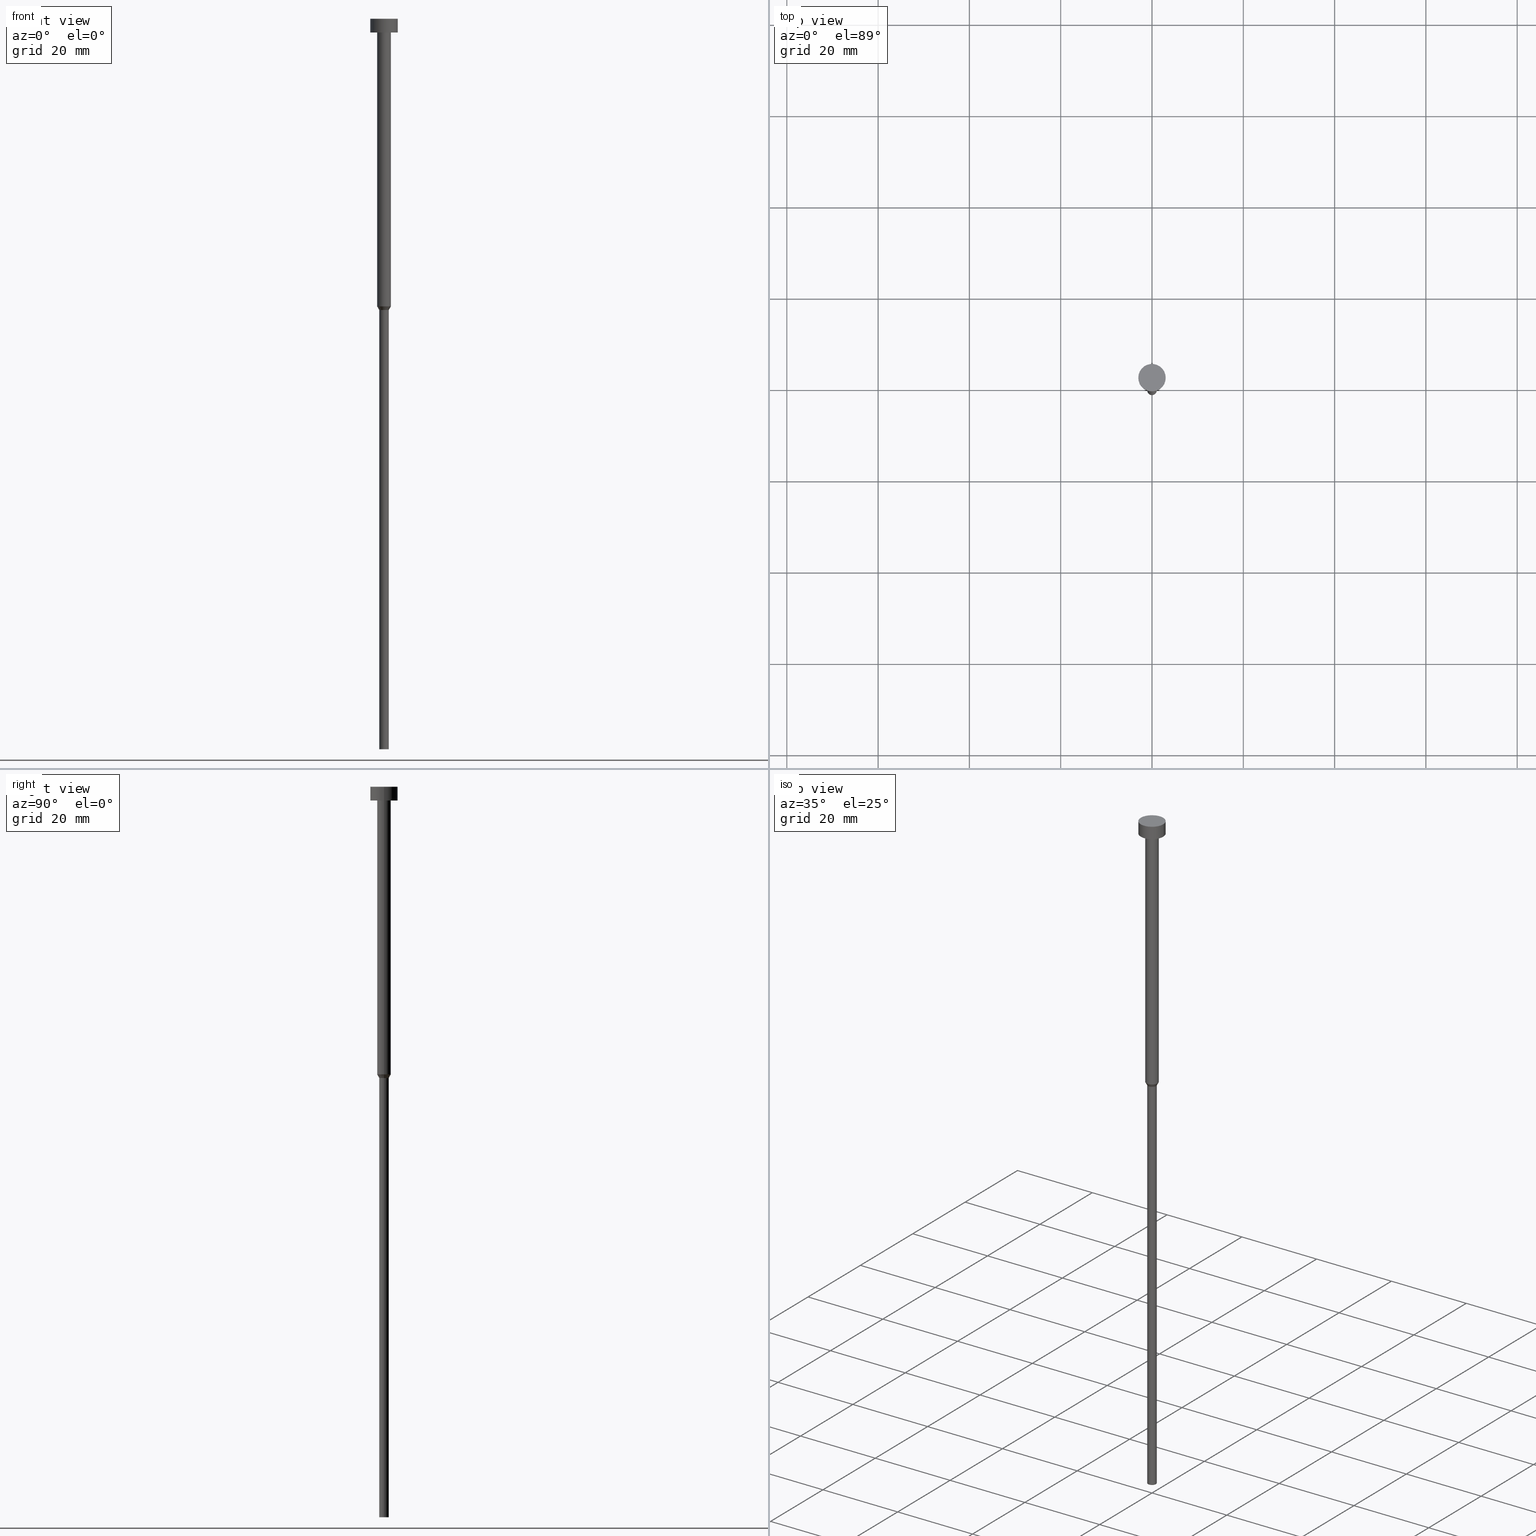
[diagram: canonical four-view strip — front | top / right | iso, engineering-drawing reading convention]
A machine part, canonical four-view strip (front | top / right | iso — engineering-drawing reading convention). The complete STEP part file that produces these views, byte-faithful:
ISO-10303-21;
HEADER;
FILE_DESCRIPTION (( 'STEP AP203' ),
    '1' );
FILE_NAME ('cc8b.STEP',
    '2023-02-13T10:01:12',
    ( '' ),
    ( '' ),
    'SwSTEP 2.0',
    'SolidWorks 2019',
    '' );
FILE_SCHEMA (( 'CONFIG_CONTROL_DESIGN' ));
ENDSEC;

DATA;
#1 = EDGE_LOOP ( 'NONE', ( #302, #23, #27, #100 ) ) ;
#2 = EDGE_CURVE ( 'NONE', #33, #271, #21, .T. ) ;
#3 = CYLINDRICAL_SURFACE ( 'NONE', #141, 3.000000000000000000 ) ;
#4 = CONICAL_SURFACE ( 'NONE', #309, 1.500000000000000000, 0.5235987755983028125 ) ;
#5 = CC_DESIGN_APPROVAL ( #342, ( #30 ) ) ;
#6 = DIRECTION ( 'NONE',  ( -0.000000000000000000, -0.000000000000000000, 1.000000000000000000 ) ) ;
#7 = EDGE_LOOP ( 'NONE', ( #91, #35 ) ) ;
#8 = CARTESIAN_POINT ( 'NONE',  ( 0.000000000000000000, 0.000000000000000000, 0.000000000000000000 ) ) ;
#9 = CARTESIAN_POINT ( 'NONE',  ( 0.000000000000000000, 0.000000000000000000, -3.673940397442059868E-16 ) ) ;
#10 = DIRECTION ( 'NONE',  ( 1.000000000000000000, 0.000000000000000000, 0.000000000000000000 ) ) ;
#11 = CC_DESIGN_PERSON_AND_ORGANIZATION_ASSIGNMENT ( #317, #74, ( #70 ) ) ;
#12 = CARTESIAN_POINT ( 'NONE',  ( 0.000000000000000000, 0.000000000000000000, -63.00000000000000000 ) ) ;
#13 = APPLICATION_CONTEXT ( 'configuration controlled 3d designs of mechanical parts and assemblies' ) ;
#14 = AXIS2_PLACEMENT_3D ( 'NONE', #322, #120, #340 ) ;
#15 = ORIENTED_EDGE ( 'NONE', *, *, #101, .F. ) ;
#16 = VERTEX_POINT ( 'NONE', #134 ) ;
#17 = AXIS2_PLACEMENT_3D ( 'NONE', #139, #250, #311 ) ;
#18 = DATE_AND_TIME ( #194, #190 ) ;
#19 = APPROVAL ( #20, 'NEUR�EN�' ) ;
#20 = APPROVAL_STATUS ( 'not_yet_approved' ) ;
#21 = LINE ( 'NONE', #274, #55 ) ;
#22 = AXIS2_PLACEMENT_3D ( 'NONE', #318, #121, #225 ) ;
#23 = ORIENTED_EDGE ( 'NONE', *, *, #313, .T. ) ;
#24 = CARTESIAN_POINT ( 'NONE',  ( 0.000000000000000000, 0.000000000000000000, 0.000000000000000000 ) ) ;
#25 = CLOSED_SHELL ( 'NONE', ( #298, #256, #226, #253, #276, #339, #186, #346, #182, #107, #138 ) ) ;
#26 = DIRECTION ( 'NONE',  ( -0.000000000000000000, -0.000000000000000000, 1.000000000000000000 ) ) ;
#27 = ORIENTED_EDGE ( 'NONE', *, *, #164, .F. ) ;
#28 = AXIS2_PLACEMENT_3D ( 'NONE', #126, #259, #327 ) ;
#29 = CARTESIAN_POINT ( 'NONE',  ( 0.000000000000000000, 0.000000000000000000, 0.000000000000000000 ) ) ;
#30 = SECURITY_CLASSIFICATION ( '', '', #66 ) ;
#31 = EDGE_CURVE ( 'NONE', #124, #47, #158, .T. ) ;
#32 = DIRECTION ( 'NONE',  ( 1.000000000000000000, 0.000000000000000000, 0.000000000000000000 ) ) ;
#33 = VERTEX_POINT ( 'NONE', #207 ) ;
#34 = COORDINATED_UNIVERSAL_TIME_OFFSET ( 1, 0, .AHEAD. ) ;
#35 = ORIENTED_EDGE ( 'NONE', *, *, #143, .F. ) ;
#36 = DATE_AND_TIME ( #205, #233 ) ;
#37 = CIRCLE ( 'NONE', #336, 3.000000000000000000 ) ;
#38 = CARTESIAN_POINT ( 'NONE',  ( 0.000000000000000000, 0.000000000000000000, -160.0000000000000000 ) ) ;
#39 = EDGE_LOOP ( 'NONE', ( #240, #60, #249, #284 ) ) ;
#40 = FACE_OUTER_BOUND ( 'NONE', #162, .T. ) ;
#41 = EDGE_CURVE ( 'NONE', #308, #272, #129, .T. ) ;
#42 = FACE_OUTER_BOUND ( 'NONE', #281, .T. ) ;
#43 = CARTESIAN_POINT ( 'NONE',  ( 0.000000000000000000, 0.000000000000000000, 0.000000000000000000 ) ) ;
#44 = DIRECTION ( 'NONE',  ( -0.000000000000000000, -0.000000000000000000, 1.000000000000000000 ) ) ;
#45 = CARTESIAN_POINT ( 'NONE',  ( 1.050000000000000044, 0.000000000000000000, -160.0000000000000000 ) ) ;
#46 = VECTOR ( 'NONE', #228, 1000.000000000000000 ) ;
#47 = VERTEX_POINT ( 'NONE', #244 ) ;
#48 = APPROVAL_DATE_TIME ( #18, #221 ) ;
#49 = CARTESIAN_POINT ( 'NONE',  ( 0.000000000000000000, 0.000000000000000000, -3.000000000000000888 ) ) ;
#50 = ORIENTED_EDGE ( 'NONE', *, *, #161, .F. ) ;
#51 = FACE_OUTER_BOUND ( 'NONE', #39, .T. ) ;
#52 = LINE ( 'NONE', #103, #210 ) ;
#53 = PERSON_AND_ORGANIZATION ( #334, #314 ) ;
#54 = DIRECTION ( 'NONE',  ( 1.000000000000000000, 0.000000000000000000, 0.000000000000000000 ) ) ;
#55 = VECTOR ( 'NONE', #108, 1000.000000000000000 ) ;
#56 = DIRECTION ( 'NONE',  ( 1.000000000000000000, 0.000000000000000000, 0.000000000000000000 ) ) ;
#57 = EDGE_CURVE ( 'NONE', #196, #33, #163, .T. ) ;
#58 = DIRECTION ( 'NONE',  ( 1.000000000000000000, 0.000000000000000000, 0.000000000000000000 ) ) ;
#59 = VERTEX_POINT ( 'NONE', #316 ) ;
#60 = ORIENTED_EDGE ( 'NONE', *, *, #101, .T. ) ;
#61 = PERSON_AND_ORGANIZATION ( #334, #314 ) ;
#62 = APPROVAL_PERSON_ORGANIZATION ( #297, #221, #98 ) ;
#63 = DIRECTION ( 'NONE',  ( 1.000000000000000000, 0.000000000000000000, 0.000000000000000000 ) ) ;
#64 = ORIENTED_EDGE ( 'NONE', *, *, #321, .F. ) ;
#65 = CC_DESIGN_DATE_AND_TIME_ASSIGNMENT ( #277, #178, ( #30 ) ) ;
#66 = SECURITY_CLASSIFICATION_LEVEL ( 'unclassified' ) ;
#67 = DIRECTION ( 'NONE',  ( -0.000000000000000000, -0.000000000000000000, 1.000000000000000000 ) ) ;
#68 = AXIS2_PLACEMENT_3D ( 'NONE', #231, #180, #349 ) ;
#69 = DIRECTION ( 'NONE',  ( 1.000000000000000000, 0.000000000000000000, 0.000000000000000000 ) ) ;
#70 = PRODUCT_DEFINITION ( 'NEZN�M�', '', #165, #189 ) ;
#71 = ORIENTED_EDGE ( 'NONE', *, *, #57, .F. ) ;
#72 = LINE ( 'NONE', #320, #330 ) ;
#73 = EDGE_CURVE ( 'NONE', #132, #271, #307, .T. ) ;
#74 = PERSON_AND_ORGANIZATION_ROLE ( 'creator' ) ;
#75 = EDGE_LOOP ( 'NONE', ( #153, #216 ) ) ;
#76 = DIRECTION ( 'NONE',  ( -0.000000000000000000, -0.000000000000000000, 1.000000000000000000 ) ) ;
#77 = AXIS2_PLACEMENT_3D ( 'NONE', #24, #170, #323 ) ;
#78 = DIRECTION ( 'NONE',  ( -0.5000000000000034417, 6.123233995736807944E-17, 0.8660254037844367092 ) ) ;
#79 = CARTESIAN_POINT ( 'NONE',  ( 0.000000000000000000, 0.000000000000000000, 0.000000000000000000 ) ) ;
#80 = ORIENTED_EDGE ( 'NONE', *, *, #95, .T. ) ;
#81 = PERSON_AND_ORGANIZATION ( #334, #314 ) ;
#82 = ORIENTED_EDGE ( 'NONE', *, *, #2, .F. ) ;
#83 = DIRECTION ( 'NONE',  ( 1.000000000000000000, 0.000000000000000000, 0.000000000000000000 ) ) ;
#84 = CARTESIAN_POINT ( 'NONE',  ( -1.500000000000000000, 1.836970198721029934E-16, 0.000000000000000000 ) ) ;
#85 = EDGE_CURVE ( 'NONE', #272, #308, #239, .T. ) ;
#86 = DIRECTION ( 'NONE',  ( 0.000000000000000000, -0.000000000000000000, 1.000000000000000000 ) ) ;
#87 = EDGE_CURVE ( 'NONE', #47, #59, #312, .T. ) ;
#88 = CYLINDRICAL_SURFACE ( 'NONE', #242, 3.000000000000000000 ) ;
#89 =( GEOMETRIC_REPRESENTATION_CONTEXT ( 3 ) GLOBAL_UNCERTAINTY_ASSIGNED_CONTEXT ( ( #222 ) ) GLOBAL_UNIT_ASSIGNED_CONTEXT ( ( #262, #199, #234 ) ) REPRESENTATION_CONTEXT ( 'NONE', 'WORKASPACE' ) );
#90 = PLANE ( 'NONE',  #17 ) ;
#91 = ORIENTED_EDGE ( 'NONE', *, *, #246, .F. ) ;
#92 = FACE_OUTER_BOUND ( 'NONE', #75, .T. ) ;
#93 = DIRECTION ( 'NONE',  ( 1.000000000000000000, 0.000000000000000000, 0.000000000000000000 ) ) ;
#94 = CONICAL_SURFACE ( 'NONE', #110, 1.500000000000000000, 0.5235987755983028125 ) ;
#95 = EDGE_CURVE ( 'NONE', #172, #308, #293, .T. ) ;
#96 = LOCAL_TIME ( 11, 1, 12.00000000000000000, #238 ) ;
#97 = PERSON_AND_ORGANIZATION ( #334, #314 ) ;
#98 = APPROVAL_ROLE ( '' ) ;
#99 = APPROVAL_PERSON_ORGANIZATION ( #227, #19, #127 ) ;
#100 = ORIENTED_EDGE ( 'NONE', *, *, #263, .F. ) ;
#101 = EDGE_CURVE ( 'NONE', #124, #16, #245, .T. ) ;
#102 = ORIENTED_EDGE ( 'NONE', *, *, #283, .T. ) ;
#103 = CARTESIAN_POINT ( 'NONE',  ( 1.500000000000000000, 0.000000000000000000, -63.00000000000000000 ) ) ;
#104 = VECTOR ( 'NONE', #177, 1000.000000000000000 ) ;
#105 = DATE_AND_TIME ( #155, #96 ) ;
#106 = DIRECTION ( 'NONE',  ( -0.000000000000000000, -0.000000000000000000, 1.000000000000000000 ) ) ;
#107 = ADVANCED_FACE ( 'NONE', ( #40 ), #3, .T. ) ;
#108 = DIRECTION ( 'NONE',  ( -0.000000000000000000, -0.000000000000000000, 1.000000000000000000 ) ) ;
#109 = ORIENTED_EDGE ( 'NONE', *, *, #192, .T. ) ;
#110 = AXIS2_PLACEMENT_3D ( 'NONE', #255, #67, #214 ) ;
#111 = CARTESIAN_POINT ( 'NONE',  ( 0.000000000000000000, 0.000000000000000000, -63.00000000000000000 ) ) ;
#112 = LOCAL_TIME ( 11, 1, 12.00000000000000000, #332 ) ;
#113 = PERSON_AND_ORGANIZATION_ROLE ( 'classification_officer' ) ;
#114 = CARTESIAN_POINT ( 'NONE',  ( 3.000000000000000000, 0.000000000000000000, -3.673940397442059868E-16 ) ) ;
#115 = CIRCLE ( 'NONE', #232, 1.500000000000000000 ) ;
#116 = FACE_BOUND ( 'NONE', #237, .T. ) ;
#117 = FACE_OUTER_BOUND ( 'NONE', #198, .T. ) ;
#118 = CARTESIAN_POINT ( 'NONE',  ( -3.000000000000000000, 3.673940397442059868E-16, -3.673940397442059868E-16 ) ) ;
#119 = CARTESIAN_POINT ( 'NONE',  ( 3.000000000000000000, 0.000000000000000000, 0.000000000000000000 ) ) ;
#120 = DIRECTION ( 'NONE',  ( -0.000000000000000000, -0.000000000000000000, 1.000000000000000000 ) ) ;
#121 = DIRECTION ( 'NONE',  ( -0.000000000000000000, -0.000000000000000000, 1.000000000000000000 ) ) ;
#122 = PRODUCT_DEFINITION_SHAPE ( 'NONE', 'NONE',  #70 ) ;
#123 = CC_DESIGN_PERSON_AND_ORGANIZATION_ASSIGNMENT ( #81, #266, ( #348 ) ) ;
#124 = VERTEX_POINT ( 'NONE', #251 ) ;
#125 = MECHANICAL_CONTEXT ( 'NONE', #13, 'mechanical' ) ;
#126 = CARTESIAN_POINT ( 'NONE',  ( 0.000000000000000000, 0.000000000000000000, 0.000000000000000000 ) ) ;
#127 = APPROVAL_ROLE ( '' ) ;
#128 = EDGE_CURVE ( 'NONE', #289, #272, #219, .T. ) ;
#129 = CIRCLE ( 'NONE', #174, 3.000000000000000000 ) ;
#130 = PERSON_AND_ORGANIZATION ( #334, #314 ) ;
#131 = CARTESIAN_POINT ( 'NONE',  ( 0.000000000000000000, 0.000000000000000000, -3.673940397442059868E-16 ) ) ;
#132 = VERTEX_POINT ( 'NONE', #338 ) ;
#133 = VECTOR ( 'NONE', #252, 1000.000000000000000 ) ;
#134 = CARTESIAN_POINT ( 'NONE',  ( 1.500000000000000000, 0.000000000000000000, -63.00000000000000000 ) ) ;
#135 = ORIENTED_EDGE ( 'NONE', *, *, #246, .T. ) ;
#136 = EDGE_LOOP ( 'NONE', ( #135, #80, #305, #204 ) ) ;
#137 = CARTESIAN_POINT ( 'NONE',  ( 0.000000000000000000, 0.000000000000000000, -3.000000000000000888 ) ) ;
#138 = ADVANCED_FACE ( 'NONE', ( #92 ), #176, .T. ) ;
#139 = CARTESIAN_POINT ( 'NONE',  ( 0.000000000000000000, -3.000000000000000000, -3.000000000000000888 ) ) ;
#140 = DIRECTION ( 'NONE',  ( 1.000000000000000000, 0.000000000000000000, 0.000000000000000000 ) ) ;
#141 = AXIS2_PLACEMENT_3D ( 'NONE', #43, #6, #142 ) ;
#142 = DIRECTION ( 'NONE',  ( 1.000000000000000000, 0.000000000000000000, 0.000000000000000000 ) ) ;
#143 = EDGE_CURVE ( 'NONE', #172, #289, #217, .T. ) ;
#144 = CYLINDRICAL_SURFACE ( 'NONE', #282, 1.050000000000000044 ) ;
#145 = ORIENTED_EDGE ( 'NONE', *, *, #161, .T. ) ;
#146 = APPLICATION_PROTOCOL_DEFINITION ( 'international standard', 'config_control_design', 1994, #13 ) ;
#147 = FACE_OUTER_BOUND ( 'NONE', #1, .T. ) ;
#148 = ORIENTED_EDGE ( 'NONE', *, *, #143, .T. ) ;
#149 = COORDINATED_UNIVERSAL_TIME_OFFSET ( 1, 0, .AHEAD. ) ;
#150 = CARTESIAN_POINT ( 'NONE',  ( -3.000000000000000000, 3.673940397442059868E-16, 0.000000000000000000 ) ) ;
#151 = CIRCLE ( 'NONE', #224, 1.500000000000000000 ) ;
#152 = DATE_TIME_ROLE ( 'creation_date' ) ;
#153 = ORIENTED_EDGE ( 'NONE', *, *, #85, .T. ) ;
#154 = ORIENTED_EDGE ( 'NONE', *, *, #73, .F. ) ;
#155 = CALENDAR_DATE ( 2023, 13, 2 ) ;
#156 = ORIENTED_EDGE ( 'NONE', *, *, #192, .F. ) ;
#157 = FACE_OUTER_BOUND ( 'NONE', #211, .T. ) ;
#158 = LINE ( 'NONE', #84, #104 ) ;
#159 = SHAPE_DEFINITION_REPRESENTATION ( #122, #306 ) ;
#160 = DIRECTION ( 'NONE',  ( -0.000000000000000000, -0.000000000000000000, 1.000000000000000000 ) ) ;
#161 = EDGE_CURVE ( 'NONE', #271, #132, #184, .T. ) ;
#162 = EDGE_LOOP ( 'NONE', ( #183, #148, #275, #270 ) ) ;
#163 = CIRCLE ( 'NONE', #14, 1.050000000000000044 ) ;
#164 = EDGE_CURVE ( 'NONE', #16, #124, #151, .T. ) ;
#165 = PRODUCT_DEFINITION_FORMATION_WITH_SPECIFIED_SOURCE ( 'LIBOVOLN�', '', #348, .NOT_KNOWN. ) ;
#166 = LINE ( 'NONE', #201, #254 ) ;
#167 = LINE ( 'NONE', #168, #133 ) ;
#168 = CARTESIAN_POINT ( 'NONE',  ( 1.500000000000000000, 0.000000000000000000, 0.000000000000000000 ) ) ;
#169 = AXIS2_PLACEMENT_3D ( 'NONE', #49, #200, #260 ) ;
#170 = DIRECTION ( 'NONE',  ( 0.000000000000000000, 0.000000000000000000, 1.000000000000000000 ) ) ;
#171 = EDGE_LOOP ( 'NONE', ( #82, #236, #102, #50 ) ) ;
#172 = VERTEX_POINT ( 'NONE', #191 ) ;
#173 = APPLICATION_PROTOCOL_DEFINITION ( 'international standard', 'config_control_design', 1994, #344 ) ;
#174 = AXIS2_PLACEMENT_3D ( 'NONE', #131, #181, #32 ) ;
#175 = EDGE_CURVE ( 'NONE', #16, #59, #167, .T. ) ;
#176 = PLANE ( 'NONE',  #179 ) ;
#177 = DIRECTION ( 'NONE',  ( -0.000000000000000000, -0.000000000000000000, 1.000000000000000000 ) ) ;
#178 = DATE_TIME_ROLE ( 'classification_date' ) ;
#179 = AXIS2_PLACEMENT_3D ( 'NONE', #206, #86, #300 ) ;
#180 = DIRECTION ( 'NONE',  ( -0.000000000000000000, -0.000000000000000000, 1.000000000000000000 ) ) ;
#181 = DIRECTION ( 'NONE',  ( -0.000000000000000000, -0.000000000000000000, 1.000000000000000000 ) ) ;
#182 = ADVANCED_FACE ( 'NONE', ( #116, #337 ), #90, .T. ) ;
#183 = ORIENTED_EDGE ( 'NONE', *, *, #95, .F. ) ;
#184 = CIRCLE ( 'NONE', #68, 1.050000000000000044 ) ;
#185 = AXIS2_PLACEMENT_3D ( 'NONE', #285, #258, #140 ) ;
#186 = ADVANCED_FACE ( 'NONE', ( #42 ), #94, .T. ) ;
#187 = DIRECTION ( 'NONE',  ( -0.000000000000000000, -0.000000000000000000, 1.000000000000000000 ) ) ;
#188 = DIRECTION ( 'NONE',  ( -1.000000000000000000, 0.000000000000000000, -0.000000000000000000 ) ) ;
#189 = DESIGN_CONTEXT ( 'detailed design', #344, 'design' ) ;
#190 = LOCAL_TIME ( 11, 1, 12.00000000000000000, #292 ) ;
#191 = CARTESIAN_POINT ( 'NONE',  ( -3.000000000000000000, 3.673940397442059868E-16, -3.000000000000000888 ) ) ;
#192 = EDGE_CURVE ( 'NONE', #59, #47, #115, .T. ) ;
#193 = DIRECTION ( 'NONE',  ( 1.000000000000000000, 0.000000000000000000, 0.000000000000000000 ) ) ;
#194 = CALENDAR_DATE ( 2023, 13, 2 ) ;
#195 = DIRECTION ( 'NONE',  ( -0.000000000000000000, -0.000000000000000000, 1.000000000000000000 ) ) ;
#196 = VERTEX_POINT ( 'NONE', #45 ) ;
#197 = LOCAL_TIME ( 11, 1, 12.00000000000000000, #149 ) ;
#198 = EDGE_LOOP ( 'NONE', ( #71, #64 ) ) ;
#199 =( NAMED_UNIT ( * ) PLANE_ANGLE_UNIT ( ) SI_UNIT ( $, .RADIAN. ) );
#200 = DIRECTION ( 'NONE',  ( -0.000000000000000000, -0.000000000000000000, 1.000000000000000000 ) ) ;
#201 = CARTESIAN_POINT ( 'NONE',  ( 1.050000000000000044, 0.000000000000000000, 0.000000000000000000 ) ) ;
#202 = PRODUCT_RELATED_PRODUCT_CATEGORY ( 'detail', '', ( #348 ) ) ;
#203 = AXIS2_PLACEMENT_3D ( 'NONE', #299, #44, #56 ) ;
#204 = ORIENTED_EDGE ( 'NONE', *, *, #128, .F. ) ;
#205 = CALENDAR_DATE ( 2023, 13, 2 ) ;
#206 = CARTESIAN_POINT ( 'NONE',  ( 0.000000000000000000, 0.000000000000000000, -1.836970198721029934E-16 ) ) ;
#207 = CARTESIAN_POINT ( 'NONE',  ( -1.050000000000000044, 1.285879139104720978E-16, -160.0000000000000000 ) ) ;
#208 = ORIENTED_EDGE ( 'NONE', *, *, #2, .T. ) ;
#209 = CALENDAR_DATE ( 2023, 13, 2 ) ;
#210 = VECTOR ( 'NONE', #247, 1000.000000000000000 ) ;
#211 = EDGE_LOOP ( 'NONE', ( #278, #296, #156, #267 ) ) ;
#212 = CC_DESIGN_PERSON_AND_ORGANIZATION_ASSIGNMENT ( #61, #113, ( #30 ) ) ;
#213 = EDGE_LOOP ( 'NONE', ( #352, #208, #154, #294 ) ) ;
#214 = DIRECTION ( 'NONE',  ( 1.000000000000000000, 0.000000000000000000, 0.000000000000000000 ) ) ;
#215 = CARTESIAN_POINT ( 'NONE',  ( -1.050000000000000044, 1.285879139104720978E-16, -63.77942286340599054 ) ) ;
#216 = ORIENTED_EDGE ( 'NONE', *, *, #41, .T. ) ;
#217 = CIRCLE ( 'NONE', #203, 3.000000000000000000 ) ;
#218 = AXIS2_PLACEMENT_3D ( 'NONE', #29, #328, #54 ) ;
#219 = LINE ( 'NONE', #119, #269 ) ;
#220 = DIRECTION ( 'NONE',  ( 0.000000000000000000, 0.000000000000000000, -1.000000000000000000 ) ) ;
#221 = APPROVAL ( #343, 'NEUR�EN�' ) ;
#222 = UNCERTAINTY_MEASURE_WITH_UNIT (LENGTH_MEASURE( 1.000000000000000082E-05 ), #262, 'distance_accuracy_value', 'NONE');
#223 = DIRECTION ( 'NONE',  ( -0.000000000000000000, -0.000000000000000000, 1.000000000000000000 ) ) ;
#224 = AXIS2_PLACEMENT_3D ( 'NONE', #111, #106, #58 ) ;
#225 = DIRECTION ( 'NONE',  ( 1.000000000000000000, 0.000000000000000000, 0.000000000000000000 ) ) ;
#226 = ADVANCED_FACE ( 'NONE', ( #147 ), #4, .T. ) ;
#227 = PERSON_AND_ORGANIZATION ( #334, #314 ) ;
#228 = DIRECTION ( 'NONE',  ( -0.000000000000000000, -0.000000000000000000, 1.000000000000000000 ) ) ;
#229 = FACE_OUTER_BOUND ( 'NONE', #171, .T. ) ;
#230 = DIRECTION ( 'NONE',  ( -0.000000000000000000, -0.000000000000000000, 1.000000000000000000 ) ) ;
#231 = CARTESIAN_POINT ( 'NONE',  ( 0.000000000000000000, 0.000000000000000000, -63.77942286340599054 ) ) ;
#232 = AXIS2_PLACEMENT_3D ( 'NONE', #279, #187, #69 ) ;
#233 = LOCAL_TIME ( 11, 1, 12.00000000000000000, #34 ) ;
#234 =( NAMED_UNIT ( * ) SI_UNIT ( $, .STERADIAN. ) SOLID_ANGLE_UNIT ( ) );
#235 = DIRECTION ( 'NONE',  ( -0.000000000000000000, -0.000000000000000000, 1.000000000000000000 ) ) ;
#236 = ORIENTED_EDGE ( 'NONE', *, *, #321, .T. ) ;
#237 = EDGE_LOOP ( 'NONE', ( #109, #326 ) ) ;
#238 = COORDINATED_UNIVERSAL_TIME_OFFSET ( 1, 0, .AHEAD. ) ;
#239 = CIRCLE ( 'NONE', #333, 3.000000000000000000 ) ;
#240 = ORIENTED_EDGE ( 'NONE', *, *, #31, .F. ) ;
#241 = APPROVAL_STATUS ( 'not_yet_approved' ) ;
#242 = AXIS2_PLACEMENT_3D ( 'NONE', #79, #291, #10 ) ;
#243 = MANIFOLD_SOLID_BREP ( 'Rotovat1', #25 ) ;
#244 = CARTESIAN_POINT ( 'NONE',  ( -1.500000000000000000, 1.836970198721029934E-16, -3.000000000000000888 ) ) ;
#245 = CIRCLE ( 'NONE', #22, 1.500000000000000000 ) ;
#246 = EDGE_CURVE ( 'NONE', #289, #172, #37, .T. ) ;
#247 = DIRECTION ( 'NONE',  ( 0.5000000000000034417, 0.000000000000000000, 0.8660254037844367092 ) ) ;
#248 = AXIS2_PLACEMENT_3D ( 'NONE', #345, #230, #83 ) ;
#249 = ORIENTED_EDGE ( 'NONE', *, *, #175, .T. ) ;
#250 = DIRECTION ( 'NONE',  ( 0.000000000000000000, 0.000000000000000000, -1.000000000000000000 ) ) ;
#251 = CARTESIAN_POINT ( 'NONE',  ( -1.500000000000000000, 1.836970198721029934E-16, -63.00000000000000000 ) ) ;
#252 = DIRECTION ( 'NONE',  ( -0.000000000000000000, -0.000000000000000000, 1.000000000000000000 ) ) ;
#253 = ADVANCED_FACE ( 'NONE', ( #280 ), #144, .T. ) ;
#254 = VECTOR ( 'NONE', #235, 1000.000000000000000 ) ;
#255 = CARTESIAN_POINT ( 'NONE',  ( 0.000000000000000000, 0.000000000000000000, -63.00000000000000000 ) ) ;
#256 = ADVANCED_FACE ( 'NONE', ( #157 ), #273, .T. ) ;
#257 = APPROVAL_PERSON_ORGANIZATION ( #130, #342, #303 ) ;
#258 = DIRECTION ( 'NONE',  ( -0.000000000000000000, -0.000000000000000000, 1.000000000000000000 ) ) ;
#259 = DIRECTION ( 'NONE',  ( -0.000000000000000000, -0.000000000000000000, 1.000000000000000000 ) ) ;
#260 = DIRECTION ( 'NONE',  ( 1.000000000000000000, 0.000000000000000000, 0.000000000000000000 ) ) ;
#261 = ORIENTED_EDGE ( 'NONE', *, *, #263, .T. ) ;
#262 =( LENGTH_UNIT ( ) NAMED_UNIT ( * ) SI_UNIT ( .MILLI., .METRE. ) );
#263 = EDGE_CURVE ( 'NONE', #132, #16, #52, .T. ) ;
#264 = DATE_AND_TIME ( #295, #197 ) ;
#265 = AXIS2_PLACEMENT_3D ( 'NONE', #319, #286, #325 ) ;
#266 = PERSON_AND_ORGANIZATION_ROLE ( 'design_owner' ) ;
#267 = ORIENTED_EDGE ( 'NONE', *, *, #175, .F. ) ;
#268 = CYLINDRICAL_SURFACE ( 'NONE', #28, 1.050000000000000044 ) ;
#269 = VECTOR ( 'NONE', #223, 1000.000000000000000 ) ;
#270 = ORIENTED_EDGE ( 'NONE', *, *, #41, .F. ) ;
#271 = VERTEX_POINT ( 'NONE', #215 ) ;
#272 = VERTEX_POINT ( 'NONE', #114 ) ;
#273 = CYLINDRICAL_SURFACE ( 'NONE', #218, 1.500000000000000000 ) ;
#274 = CARTESIAN_POINT ( 'NONE',  ( -1.050000000000000044, 1.285879139104720978E-16, 0.000000000000000000 ) ) ;
#275 = ORIENTED_EDGE ( 'NONE', *, *, #128, .T. ) ;
#276 = ADVANCED_FACE ( 'NONE', ( #117 ), #335, .T. ) ;
#277 = DATE_AND_TIME ( #209, #112 ) ;
#278 = ORIENTED_EDGE ( 'NONE', *, *, #164, .T. ) ;
#279 = CARTESIAN_POINT ( 'NONE',  ( 0.000000000000000000, 0.000000000000000000, -3.000000000000000888 ) ) ;
#280 = FACE_OUTER_BOUND ( 'NONE', #213, .T. ) ;
#281 = EDGE_LOOP ( 'NONE', ( #304, #145, #261, #15 ) ) ;
#282 = AXIS2_PLACEMENT_3D ( 'NONE', #8, #160, #301 ) ;
#283 = EDGE_CURVE ( 'NONE', #196, #132, #166, .T. ) ;
#284 = ORIENTED_EDGE ( 'NONE', *, *, #87, .F. ) ;
#285 = CARTESIAN_POINT ( 'NONE',  ( 0.000000000000000000, 0.000000000000000000, -63.77942286340599054 ) ) ;
#286 = DIRECTION ( 'NONE',  ( -0.000000000000000000, -0.000000000000000000, 1.000000000000000000 ) ) ;
#287 = CIRCLE ( 'NONE', #265, 1.050000000000000044 ) ;
#288 = CC_DESIGN_APPROVAL ( #19, ( #165 ) ) ;
#289 = VERTEX_POINT ( 'NONE', #324 ) ;
#290 = CYLINDRICAL_SURFACE ( 'NONE', #248, 1.500000000000000000 ) ;
#291 = DIRECTION ( 'NONE',  ( -0.000000000000000000, -0.000000000000000000, 1.000000000000000000 ) ) ;
#292 = COORDINATED_UNIVERSAL_TIME_OFFSET ( 1, 0, .AHEAD. ) ;
#293 = LINE ( 'NONE', #150, #46 ) ;
#294 = ORIENTED_EDGE ( 'NONE', *, *, #283, .F. ) ;
#295 = CALENDAR_DATE ( 2023, 13, 2 ) ;
#296 = ORIENTED_EDGE ( 'NONE', *, *, #31, .T. ) ;
#297 = PERSON_AND_ORGANIZATION ( #334, #314 ) ;
#298 = ADVANCED_FACE ( 'NONE', ( #331 ), #88, .T. ) ;
#299 = CARTESIAN_POINT ( 'NONE',  ( 0.000000000000000000, 0.000000000000000000, -3.000000000000000888 ) ) ;
#300 = DIRECTION ( 'NONE',  ( 1.000000000000000000, 0.000000000000000000, 0.000000000000000000 ) ) ;
#301 = DIRECTION ( 'NONE',  ( 1.000000000000000000, 0.000000000000000000, 0.000000000000000000 ) ) ;
#302 = ORIENTED_EDGE ( 'NONE', *, *, #73, .T. ) ;
#303 = APPROVAL_ROLE ( '' ) ;
#304 = ORIENTED_EDGE ( 'NONE', *, *, #313, .F. ) ;
#305 = ORIENTED_EDGE ( 'NONE', *, *, #85, .F. ) ;
#306 = ADVANCED_BREP_SHAPE_REPRESENTATION ( 'cc8b', ( #243, #77 ), #89 ) ;
#307 = CIRCLE ( 'NONE', #185, 1.050000000000000044 ) ;
#308 = VERTEX_POINT ( 'NONE', #118 ) ;
#309 = AXIS2_PLACEMENT_3D ( 'NONE', #12, #76, #63 ) ;
#310 = CC_DESIGN_PERSON_AND_ORGANIZATION_ASSIGNMENT ( #53, #341, ( #165 ) ) ;
#311 = DIRECTION ( 'NONE',  ( -1.000000000000000000, 0.000000000000000000, -0.000000000000000000 ) ) ;
#312 = CIRCLE ( 'NONE', #169, 1.500000000000000000 ) ;
#313 = EDGE_CURVE ( 'NONE', #271, #124, #72, .T. ) ;
#314 = ORGANIZATION ( 'NEUR�EN�', 'NEUR�EN�', '' ) ;
#315 = CC_DESIGN_SECURITY_CLASSIFICATION ( #30, ( #165 ) ) ;
#316 = CARTESIAN_POINT ( 'NONE',  ( 1.500000000000000000, 0.000000000000000000, -3.000000000000000888 ) ) ;
#317 = PERSON_AND_ORGANIZATION ( #334, #314 ) ;
#318 = CARTESIAN_POINT ( 'NONE',  ( 0.000000000000000000, 0.000000000000000000, -63.00000000000000000 ) ) ;
#319 = CARTESIAN_POINT ( 'NONE',  ( 0.000000000000000000, 0.000000000000000000, -160.0000000000000000 ) ) ;
#320 = CARTESIAN_POINT ( 'NONE',  ( -1.500000000000000000, 1.836970198721029934E-16, -63.00000000000000000 ) ) ;
#321 = EDGE_CURVE ( 'NONE', #33, #196, #287, .T. ) ;
#322 = CARTESIAN_POINT ( 'NONE',  ( 0.000000000000000000, 0.000000000000000000, -160.0000000000000000 ) ) ;
#323 = DIRECTION ( 'NONE',  ( 1.000000000000000000, 0.000000000000000000, 0.000000000000000000 ) ) ;
#324 = CARTESIAN_POINT ( 'NONE',  ( 3.000000000000000000, 0.000000000000000000, -3.000000000000000888 ) ) ;
#325 = DIRECTION ( 'NONE',  ( 1.000000000000000000, 0.000000000000000000, 0.000000000000000000 ) ) ;
#326 = ORIENTED_EDGE ( 'NONE', *, *, #87, .T. ) ;
#327 = DIRECTION ( 'NONE',  ( 1.000000000000000000, 0.000000000000000000, 0.000000000000000000 ) ) ;
#328 = DIRECTION ( 'NONE',  ( -0.000000000000000000, -0.000000000000000000, 1.000000000000000000 ) ) ;
#329 = CC_DESIGN_PERSON_AND_ORGANIZATION_ASSIGNMENT ( #97, #350, ( #165 ) ) ;
#330 = VECTOR ( 'NONE', #78, 1000.000000000000000 ) ;
#331 = FACE_OUTER_BOUND ( 'NONE', #136, .T. ) ;
#332 = COORDINATED_UNIVERSAL_TIME_OFFSET ( 1, 0, .AHEAD. ) ;
#333 = AXIS2_PLACEMENT_3D ( 'NONE', #9, #195, #193 ) ;
#334 = PERSON ( 'NEUR�EN�', 'NEUR�EN�', 'NEUR�EN�', ('NEUR�EN�'), ('NEUR�EN�'), ('NEUR�EN�') ) ;
#335 = PLANE ( 'NONE',  #351 ) ;
#336 = AXIS2_PLACEMENT_3D ( 'NONE', #137, #26, #93 ) ;
#337 = FACE_OUTER_BOUND ( 'NONE', #7, .T. ) ;
#338 = CARTESIAN_POINT ( 'NONE',  ( 1.050000000000000044, 0.000000000000000000, -63.77942286340599054 ) ) ;
#339 = ADVANCED_FACE ( 'NONE', ( #229 ), #268, .T. ) ;
#340 = DIRECTION ( 'NONE',  ( 1.000000000000000000, 0.000000000000000000, 0.000000000000000000 ) ) ;
#341 = PERSON_AND_ORGANIZATION_ROLE ( 'creator' ) ;
#342 = APPROVAL ( #241, 'NEUR�EN�' ) ;
#343 = APPROVAL_STATUS ( 'not_yet_approved' ) ;
#344 = APPLICATION_CONTEXT ( 'configuration controlled 3d designs of mechanical parts and assemblies' ) ;
#345 = CARTESIAN_POINT ( 'NONE',  ( 0.000000000000000000, 0.000000000000000000, 0.000000000000000000 ) ) ;
#346 = ADVANCED_FACE ( 'NONE', ( #51 ), #290, .T. ) ;
#347 = APPROVAL_DATE_TIME ( #105, #19 ) ;
#348 = PRODUCT ( 'cc8b', 'cc8b', '', ( #125 ) ) ;
#349 = DIRECTION ( 'NONE',  ( 1.000000000000000000, 0.000000000000000000, 0.000000000000000000 ) ) ;
#350 = PERSON_AND_ORGANIZATION_ROLE ( 'design_supplier' ) ;
#351 = AXIS2_PLACEMENT_3D ( 'NONE', #38, #220, #188 ) ;
#352 = ORIENTED_EDGE ( 'NONE', *, *, #57, .T. ) ;
#353 = APPROVAL_DATE_TIME ( #36, #342 ) ;
#354 = CC_DESIGN_DATE_AND_TIME_ASSIGNMENT ( #264, #152, ( #70 ) ) ;
#355 = CC_DESIGN_APPROVAL ( #221, ( #70 ) ) ;
ENDSEC;
END-ISO-10303-21;
